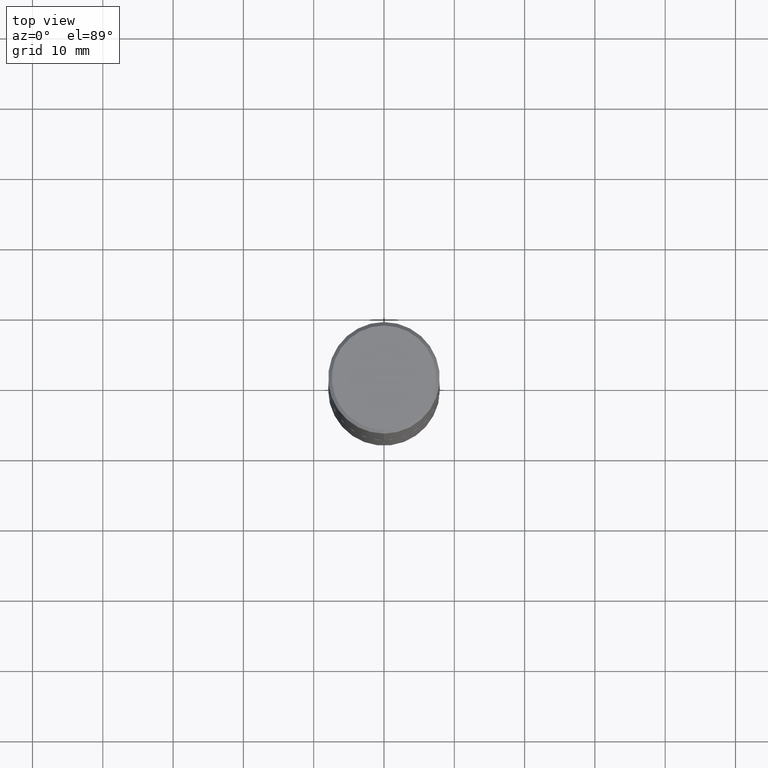
[diagram: clean part render]
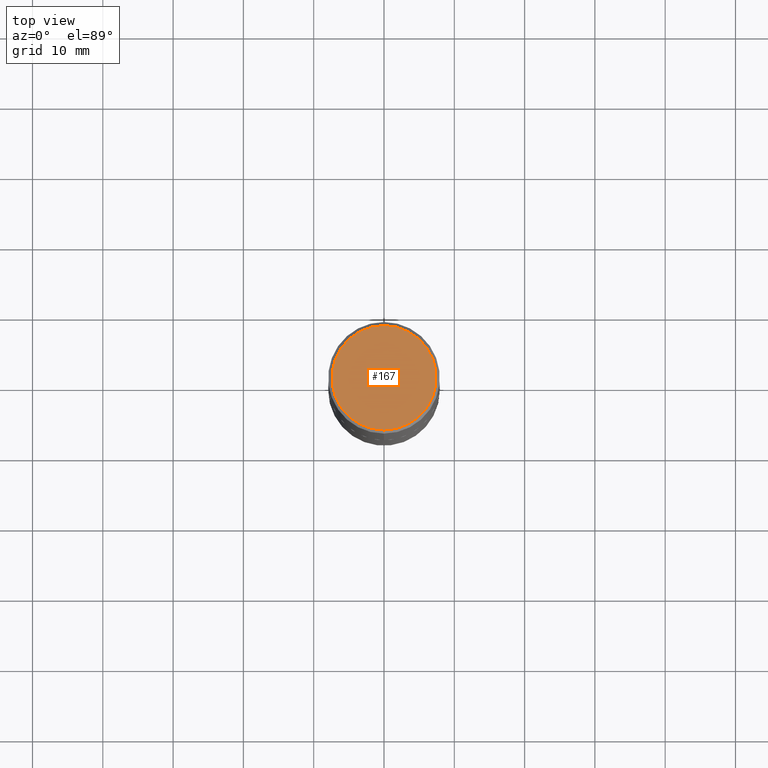
[diagram: same view with one face highlighted and labeled with its STEP entity id]
A machine part, top view. The second image highlights one B-rep face of the part: STEP entity #167.
In plain terms, the highlighted planar face has unit normal (0, -0, -1).
Its self-contained STEP definition (entity closure, byte-faithful):
#26 = DIRECTION ( 'NONE',  ( -6.982962677686265133E-15, -1.000000000000000000, 3.492364022149836753E-15 ) ) ;
#31 = CARTESIAN_POINT ( 'NONE',  ( -2.075300644325887493E-15, -0.2924999999999999822, 1.030311686326234990E-15 ) ) ;
#35 = CARTESIAN_POINT ( 'NONE',  ( -2.150299018297948745E-46, 3.071607443834507134E-32, 8.795209847407834549E-18 ) ) ;
#55 = CARTESIAN_POINT ( 'NONE',  ( 2.042516583223232540E-15, 0.2924999999999999822, -1.017118871555123169E-15 ) ) ;
#77 = DIRECTION ( 'NONE',  ( 6.982962677686265922E-15, 1.000000000000000000, -3.492364022149836358E-15 ) ) ;
#107 = CIRCLE ( 'NONE', #255, 0.2924999999999999822 ) ;
#135 = DIRECTION ( 'NONE',  ( -2.444852431726452894E-29, 3.492364022149836358E-15, 1.000000000000000000 ) ) ;
#139 = DIRECTION ( 'NONE',  ( -6.982962677686265133E-15, -1.000000000000000000, 3.492364022149836753E-15 ) ) ;
#154 = DIRECTION ( 'NONE',  ( 2.444852431726452333E-29, -3.492364022149836358E-15, -1.000000000000000000 ) ) ;
#162 = CARTESIAN_POINT ( 'NONE',  ( 2.112346210000095838E-15, 0.2924999999999999822, -1.012721266631419361E-15 ) ) ;
#167 = ADVANCED_FACE ( 'NONE', ( #344 ), #260, .F. ) ;
#251 = EDGE_CURVE ( 'NONE', #378, #323, #107, .T. ) ;
#255 = AXIS2_PLACEMENT_3D ( 'NONE', #35, #135, #26 ) ;
#260 = PLANE ( 'NONE',  #299 ) ;
#299 = AXIS2_PLACEMENT_3D ( 'NONE', #55, #154, #77 ) ;
#302 = CARTESIAN_POINT ( 'NONE',  ( -2.150299018297948745E-46, 3.071607443834507134E-32, 8.795209847407834549E-18 ) ) ;
#315 = ORIENTED_EDGE ( 'NONE', *, *, #322, .T. ) ;
#322 = EDGE_CURVE ( 'NONE', #323, #378, #365, .T. ) ;
#323 = VERTEX_POINT ( 'NONE', #31 ) ;
#330 = DIRECTION ( 'NONE',  ( -2.444852431726452894E-29, 3.492364022149836358E-15, 1.000000000000000000 ) ) ;
#344 = FACE_OUTER_BOUND ( 'NONE', #368, .T. ) ;
#345 = ORIENTED_EDGE ( 'NONE', *, *, #251, .T. ) ;
#363 = AXIS2_PLACEMENT_3D ( 'NONE', #302, #330, #139 ) ;
#365 = CIRCLE ( 'NONE', #363, 0.2924999999999999822 ) ;
#368 = EDGE_LOOP ( 'NONE', ( #345, #315 ) ) ;
#378 = VERTEX_POINT ( 'NONE', #162 ) ;